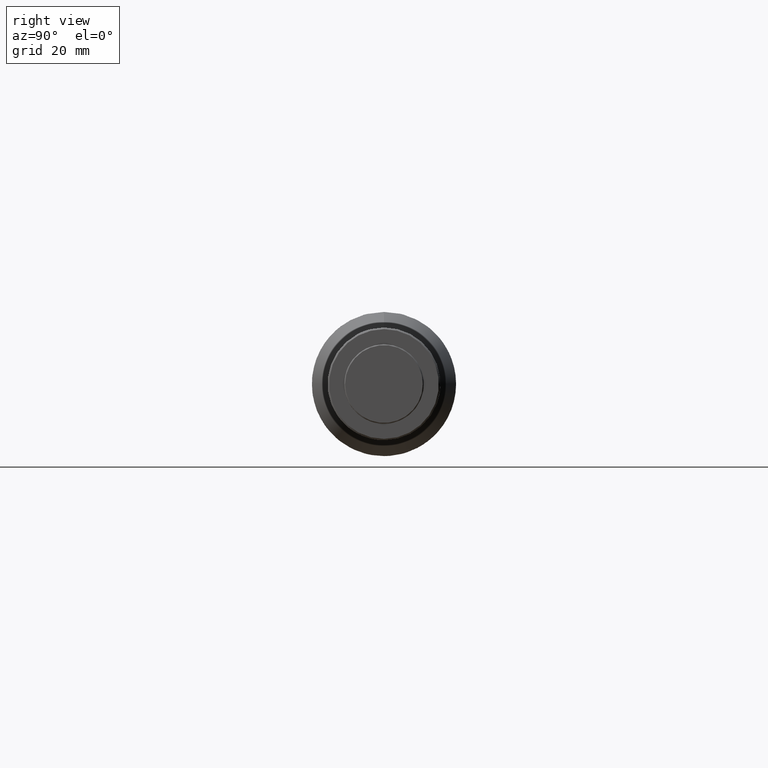
[diagram: clean part render]
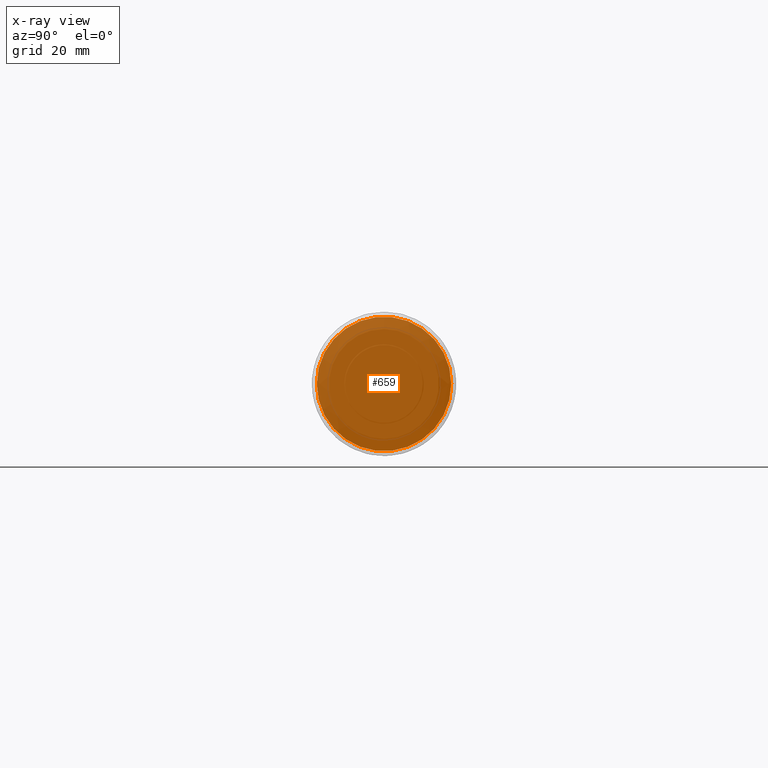
[diagram: x-ray — body ghosted, one internal face saturated and labeled with its STEP entity id]
A machine part, right view, then the same camera in x-ray: the body is ghosted and one INTERNAL B-rep face — a face not visible from any outside direction — is saturated and labeled: STEP entity #659.
In plain terms, the highlighted planar face has unit normal (-1, -0, -0).
Its self-contained STEP definition (entity closure, byte-faithful):
#98 = ORIENTED_EDGE ( 'NONE', *, *, #720, .T. ) ;
#164 = DIRECTION ( 'NONE',  ( 0.000000000000000000, 1.000000000000000000, 1.318609258053554868E-16 ) ) ;
#174 = FACE_OUTER_BOUND ( 'NONE', #517, .T. ) ;
#362 = CARTESIAN_POINT ( 'NONE',  ( 489.0000000000000568, 56.17486957814338666, 31.20951493132240273 ) ) ;
#434 = DIRECTION ( 'NONE',  ( -2.465190328815661892E-32, 1.000000000000000000, 1.318609258053555115E-16 ) ) ;
#491 = CARTESIAN_POINT ( 'NONE',  ( 489.0000000000000568, 0.000000000000000000, 0.000000000000000000 ) ) ;
#517 = EDGE_LOOP ( 'NONE', ( #98 ) ) ;
#613 = VERTEX_POINT ( 'NONE', #745 ) ;
#633 = CIRCLE ( 'NONE', #724, 21.45211006975307555 ) ;
#659 = ADVANCED_FACE ( 'NONE', ( #174 ), #754, .F. ) ;
#720 = EDGE_CURVE ( 'NONE', #613, #613, #633, .T. ) ;
#724 = AXIS2_PLACEMENT_3D ( 'NONE', #491, #757, #164 ) ;
#745 = CARTESIAN_POINT ( 'NONE',  ( 489.0000000000000568, 21.45211006975307555, 2.828695094276029697E-15 ) ) ;
#754 = PLANE ( 'NONE',  #819 ) ;
#757 = DIRECTION ( 'NONE',  ( 1.000000000000000000, 2.465190328815661892E-32, 2.736911063134408342E-48 ) ) ;
#759 = DIRECTION ( 'NONE',  ( -1.000000000000000000, -2.465190328815661892E-32, -2.736911063134408342E-48 ) ) ;
#819 = AXIS2_PLACEMENT_3D ( 'NONE', #362, #759, #434 ) ;